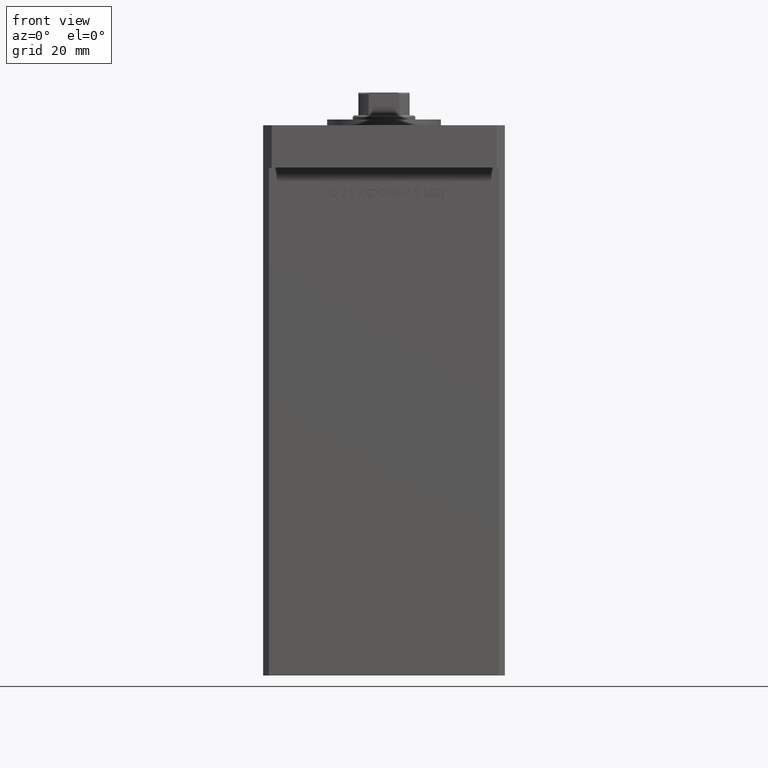
[diagram: clean part render]
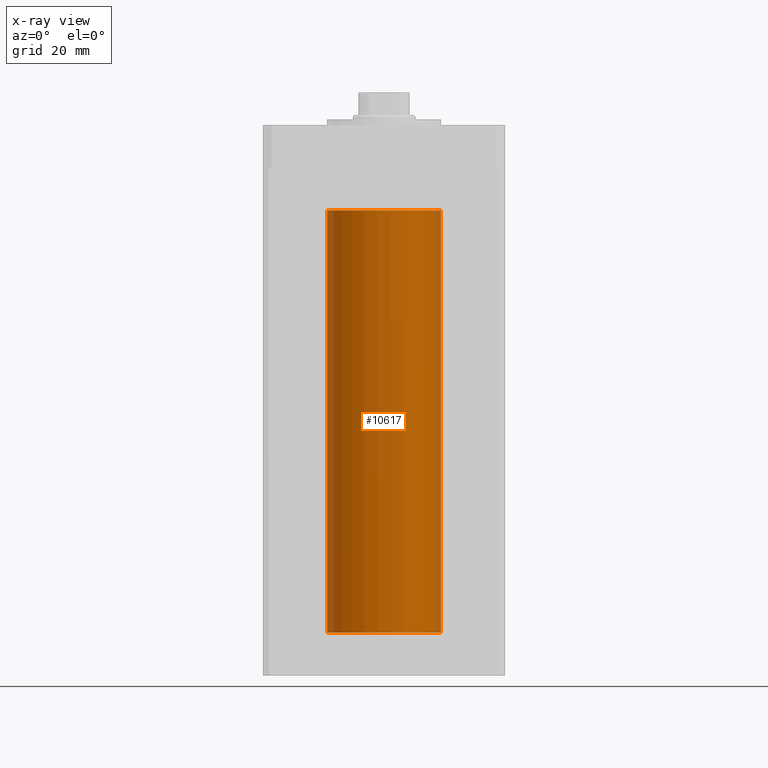
[diagram: x-ray — body ghosted, one internal face saturated and labeled with its STEP entity id]
A machine part, front view, then the same camera in x-ray: the body is ghosted and one INTERNAL B-rep face — a face not visible from any outside direction — is saturated and labeled: STEP entity #10617.
In plain terms, the highlighted cylindrical surface (partial cylindrical patch) has radius 20 mm, axis along (-0, -0, -1).
Its self-contained STEP definition (entity closure, byte-faithful):
#3027 = CARTESIAN_POINT ( 'NONE',  ( 20.00000000000000000, 2.449293598294706513E-15, 148.5000000000000000 ) ) ;
#7458 = DIRECTION ( 'NONE',  ( -1.000000000000000000, 0.000000000000000000, 0.000000000000000000 ) ) ;
#9152 = VERTEX_POINT ( 'NONE', #29603 ) ;
#9239 = CIRCLE ( 'NONE', #39561, 20.00000000000000000 ) ;
#9483 = DIRECTION ( 'NONE',  ( -0.000000000000000000, 0.000000000000000000, 1.000000000000000000 ) ) ;
#10617 = ADVANCED_FACE ( 'NONE', ( #32140 ), #44628, .F. ) ;
#11333 = CIRCLE ( 'NONE', #34707, 20.00000000000000000 ) ;
#14019 = CARTESIAN_POINT ( 'NONE',  ( -20.00000000000000000, 0.000000000000000000, 148.5000000000000000 ) ) ;
#14572 = VERTEX_POINT ( 'NONE', #25112 ) ;
#18842 = ORIENTED_EDGE ( 'NONE', *, *, #29176, .F. ) ;
#20190 = CARTESIAN_POINT ( 'NONE',  ( 0.000000000000000000, 0.000000000000000000, 148.5000000000000000 ) ) ;
#20875 = DIRECTION ( 'NONE',  ( 1.000000000000000000, 0.000000000000000000, 0.000000000000000000 ) ) ;
#21803 = ORIENTED_EDGE ( 'NONE', *, *, #25431, .F. ) ;
#21888 = CARTESIAN_POINT ( 'NONE',  ( 0.000000000000000000, 0.000000000000000000, 0.000000000000000000 ) ) ;
#22142 = DIRECTION ( 'NONE',  ( 1.000000000000000000, 0.000000000000000000, 0.000000000000000000 ) ) ;
#22671 = VECTOR ( 'NONE', #32024, 1000.000000000000000 ) ;
#23179 = VECTOR ( 'NONE', #52233, 1000.000000000000000 ) ;
#23336 = LINE ( 'NONE', #3027, #22671 ) ;
#25112 = CARTESIAN_POINT ( 'NONE',  ( 20.00000000000000000, 2.449293598294706513E-15, 148.5000000000000000 ) ) ;
#25431 = EDGE_CURVE ( 'NONE', #9152, #49427, #9239, .T. ) ;
#29176 = EDGE_CURVE ( 'NONE', #47839, #9152, #47619, .T. ) ;
#29426 = ORIENTED_EDGE ( 'NONE', *, *, #37910, .T. ) ;
#29603 = CARTESIAN_POINT ( 'NONE',  ( -20.00000000000000000, 0.000000000000000000, 0.000000000000000000 ) ) ;
#32024 = DIRECTION ( 'NONE',  ( -0.000000000000000000, -0.000000000000000000, -1.000000000000000000 ) ) ;
#32140 = FACE_OUTER_BOUND ( 'NONE', #48001, .T. ) ;
#34707 = AXIS2_PLACEMENT_3D ( 'NONE', #38268, #9483, #20875 ) ;
#35170 = DIRECTION ( 'NONE',  ( -0.000000000000000000, 0.000000000000000000, 1.000000000000000000 ) ) ;
#35411 = CARTESIAN_POINT ( 'NONE',  ( -20.00000000000000000, 0.000000000000000000, 148.5000000000000000 ) ) ;
#35836 = AXIS2_PLACEMENT_3D ( 'NONE', #20190, #48976, #7458 ) ;
#37910 = EDGE_CURVE ( 'NONE', #47839, #14572, #11333, .T. ) ;
#38268 = CARTESIAN_POINT ( 'NONE',  ( 0.000000000000000000, 0.000000000000000000, 148.5000000000000000 ) ) ;
#39561 = AXIS2_PLACEMENT_3D ( 'NONE', #21888, #35170, #22142 ) ;
#42823 = CARTESIAN_POINT ( 'NONE',  ( 20.00000000000000000, 2.449293598294706513E-15, 0.000000000000000000 ) ) ;
#43791 = ORIENTED_EDGE ( 'NONE', *, *, #45231, .T. ) ;
#44628 = CYLINDRICAL_SURFACE ( 'NONE', #35836, 20.00000000000000000 ) ;
#45231 = EDGE_CURVE ( 'NONE', #14572, #49427, #23336, .T. ) ;
#47619 = LINE ( 'NONE', #35411, #23179 ) ;
#47839 = VERTEX_POINT ( 'NONE', #14019 ) ;
#48001 = EDGE_LOOP ( 'NONE', ( #29426, #43791, #21803, #18842 ) ) ;
#48976 = DIRECTION ( 'NONE',  ( -0.000000000000000000, -0.000000000000000000, -1.000000000000000000 ) ) ;
#49427 = VERTEX_POINT ( 'NONE', #42823 ) ;
#52233 = DIRECTION ( 'NONE',  ( -0.000000000000000000, -0.000000000000000000, -1.000000000000000000 ) ) ;